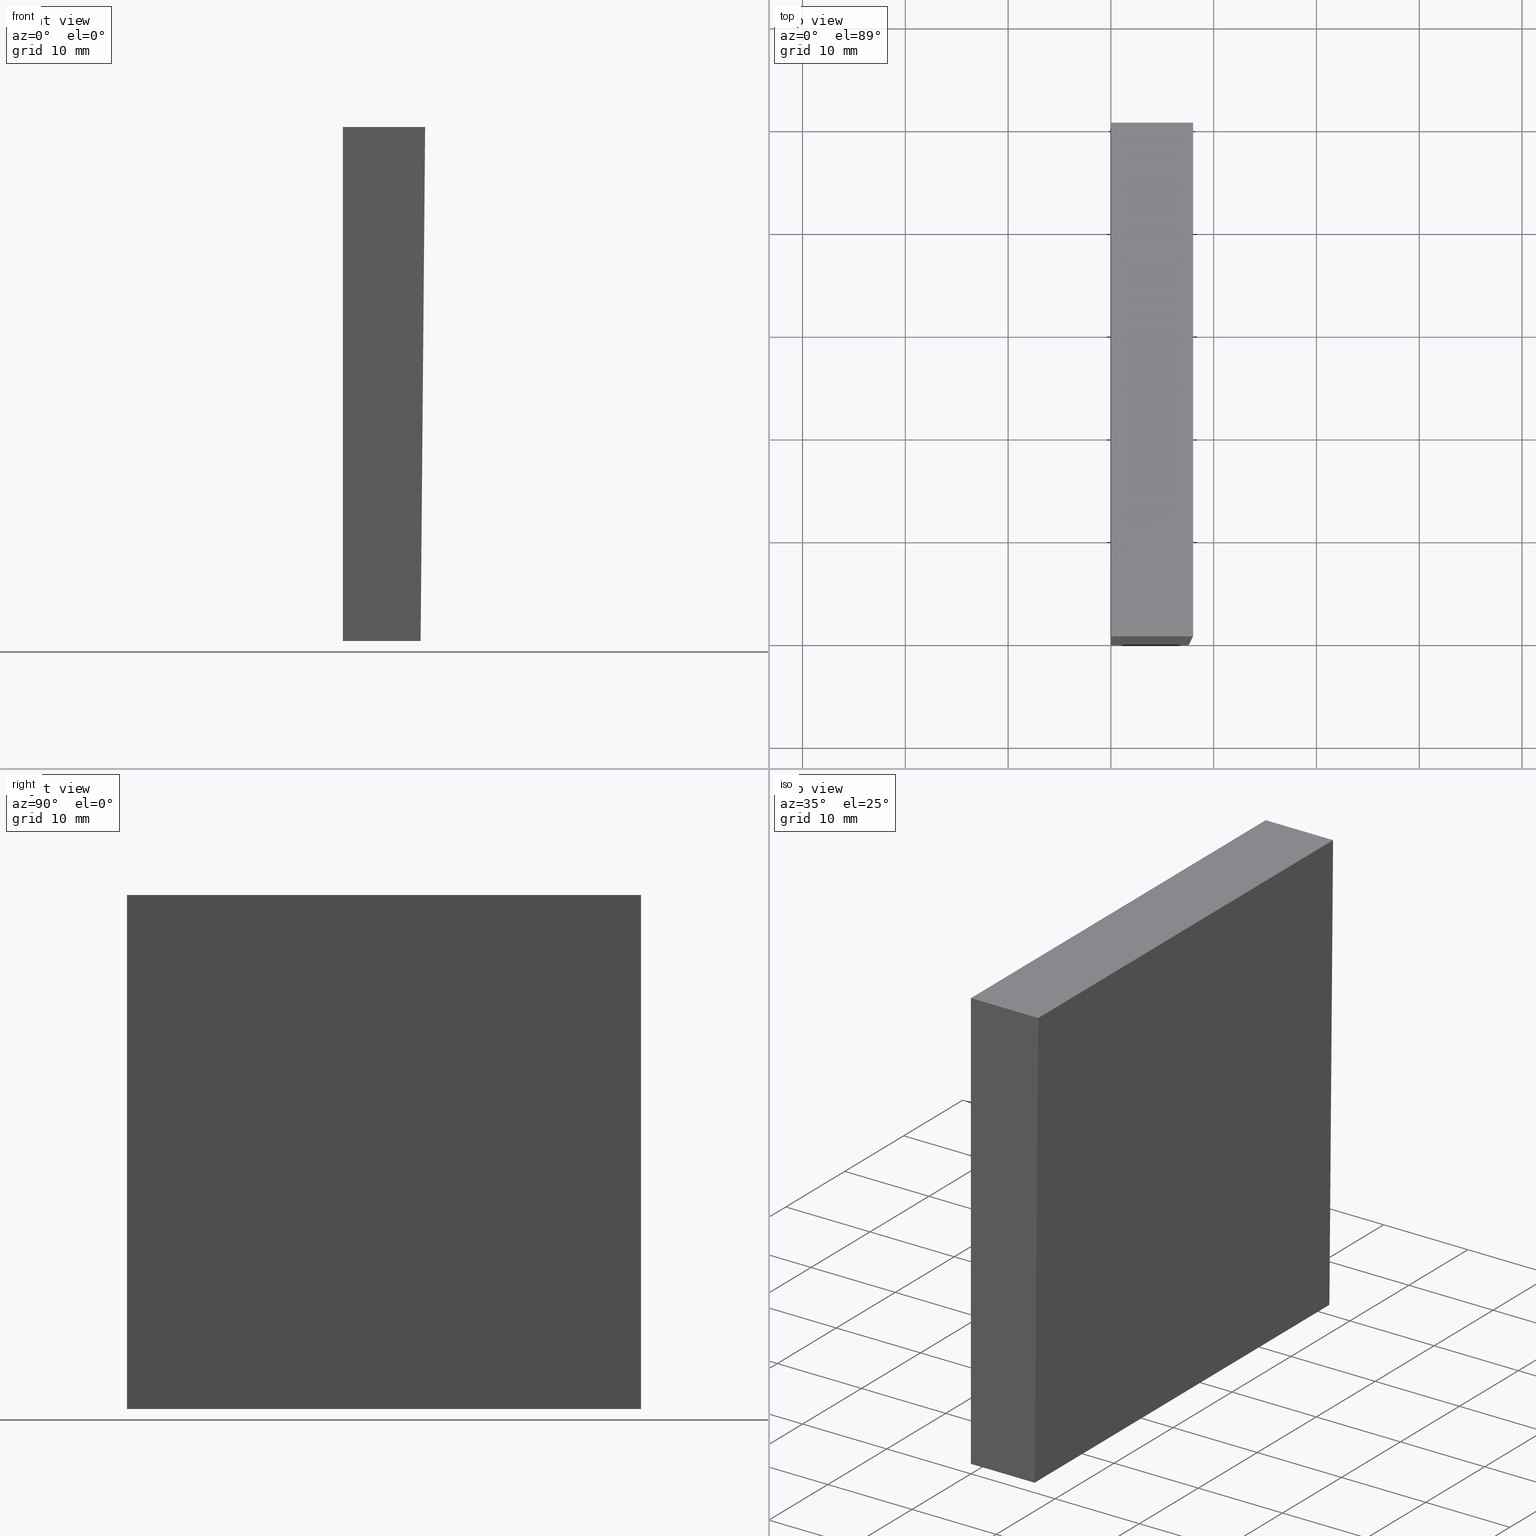
[diagram: canonical four-view strip — front | top / right | iso, engineering-drawing reading convention]
A machine part, canonical four-view strip (front | top / right | iso — engineering-drawing reading convention). The complete STEP part file that produces these views, byte-faithful:
ISO-10303-21;
HEADER;
FILE_DESCRIPTION (( 'STEP AP214' ),
    '1' );
FILE_NAME ('349515.STEP',
    '2019-08-13T03:42:50',
    ( 'user' ),
    ( '΢���й�' ),
    'SwSTEP 2.0',
    'SolidWorks 2016',
    '' );
FILE_SCHEMA (( 'AUTOMOTIVE_DESIGN' ));
ENDSEC;

DATA;
#1 = PRODUCT ( '349515', '349515', '', ( #151 ) ) ;
#2 = FACE_OUTER_BOUND ( 'NONE', #107, .T. ) ;
#3 = PRESENTATION_LAYER_ASSIGNMENT (  '', '', ( #194 ) ) ;
#4 = VERTEX_POINT ( 'NONE', #100 ) ;
#5 = ORIENTED_EDGE ( 'NONE', *, *, #96, .F. ) ;
#6 = DIRECTION ( 'NONE',  ( -0.0000000000000000000, -1.000000000000000000, -0.0000000000000000000 ) ) ;
#7 = VERTEX_POINT ( 'NONE', #145 ) ;
#8 = DIRECTION ( 'NONE',  ( 1.000000000000000000, 0.0000000000000000000, 0.0000000000000000000 ) ) ;
#9 = DIRECTION ( 'NONE',  ( 0.0000000000000000000, 0.0000000000000000000, 1.000000000000000000 ) ) ;
#10 = DIRECTION ( 'NONE',  ( -0.0000000000000000000, -1.000000000000000000, -0.0000000000000000000 ) ) ;
#11 = SURFACE_SIDE_STYLE ('',( #14 ) ) ;
#12 = MECHANICAL_DESIGN_GEOMETRIC_PRESENTATION_REPRESENTATION (  '', ( #194 ), #19 ) ;
#13 = VERTEX_POINT ( 'NONE', #35 ) ;
#14 = SURFACE_STYLE_FILL_AREA ( #102 ) ;
#15 = LINE ( 'NONE', #193, #80 ) ;
#16 = EDGE_CURVE ( 'NONE', #4, #27, #141, .T. ) ;
#17 = ORIENTED_EDGE ( 'NONE', *, *, #190, .F. ) ;
#18 = DIRECTION ( 'NONE',  ( 0.008726535498366981900, 0.0000000000000000000, 0.9999619230641713100 ) ) ;
#19 =( GEOMETRIC_REPRESENTATION_CONTEXT ( 3 ) GLOBAL_UNCERTAINTY_ASSIGNED_CONTEXT ( ( #174 ) ) GLOBAL_UNIT_ASSIGNED_CONTEXT ( ( #23, #130, #198 ) ) REPRESENTATION_CONTEXT ( 'NONE', 'WORKASPACE' ) );
#20 = DIRECTION ( 'NONE',  ( -1.000000000000000000, 0.0000000000000000000, -0.0000000000000000000 ) ) ;
#21 =( NAMED_UNIT ( * ) SI_UNIT ( $, .STERADIAN. ) SOLID_ANGLE_UNIT ( ) );
#22 = VERTEX_POINT ( 'NONE', #183 ) ;
#23 =( LENGTH_UNIT ( ) NAMED_UNIT ( * ) SI_UNIT ( .MILLI., .METRE. ) );
#24 = ORIENTED_EDGE ( 'NONE', *, *, #16, .T. ) ;
#25 = ADVANCED_BREP_SHAPE_REPRESENTATION ( '349515', ( #149, #49 ), #159 ) ;
#26 = ORIENTED_EDGE ( 'NONE', *, *, #140, .F. ) ;
#27 = VERTEX_POINT ( 'NONE', #85 ) ;
#28 = ORIENTED_EDGE ( 'NONE', *, *, #73, .F. ) ;
#29 = CARTESIAN_POINT ( 'NONE',  ( 7.563656610462413900, 50.00000000000000000, -25.00000000000000000 ) ) ;
#30 = PRESENTATION_STYLE_ASSIGNMENT (( #101 ) ) ;
#31 = CARTESIAN_POINT ( 'NONE',  ( 5.204170427930421300E-015, 50.00000000000000000, -25.00000000000000000 ) ) ;
#32 = CARTESIAN_POINT ( 'NONE',  ( 5.204170427930421300E-015, 0.0000000000000000000, -25.00000000000000000 ) ) ;
#33 = DIRECTION ( 'NONE',  ( 0.0000000000000000000, 0.0000000000000000000, -1.000000000000000000 ) ) ;
#34 = LINE ( 'NONE', #157, #189 ) ;
#35 = CARTESIAN_POINT ( 'NONE',  ( 8.000000000000005300, 50.00000000000000000, 25.00000000000000000 ) ) ;
#36 = DIRECTION ( 'NONE',  ( 0.0000000000000000000, 0.0000000000000000000, 1.000000000000000000 ) ) ;
#37 = CARTESIAN_POINT ( 'NONE',  ( 5.204170427930421300E-015, 0.0000000000000000000, -25.00000000000000000 ) ) ;
#38 = EDGE_CURVE ( 'NONE', #58, #154, #109, .T. ) ;
#39 = DIRECTION ( 'NONE',  ( 1.000000000000000000, 0.0000000000000000000, 0.0000000000000000000 ) ) ;
#40 = ADVANCED_FACE ( 'NONE', ( #2 ), #126, .F. ) ;
#41 = ORIENTED_EDGE ( 'NONE', *, *, #96, .T. ) ;
#42 = ADVANCED_FACE ( 'NONE', ( #137 ), #147, .F. ) ;
#43 = EDGE_LOOP ( 'NONE', ( #125, #5, #28, #162 ) ) ;
#44 = ORIENTED_EDGE ( 'NONE', *, *, #73, .T. ) ;
#45 = CARTESIAN_POINT ( 'NONE',  ( 7.563656610462413900, 0.0000000000000000000, -25.00000000000000000 ) ) ;
#46 = CARTESIAN_POINT ( 'NONE',  ( 5.204170427930421300E-015, 50.00000000000000000, -25.00000000000000000 ) ) ;
#47 = CARTESIAN_POINT ( 'NONE',  ( 8.000000000000005300, 50.00000000000000000, 25.00000000000000000 ) ) ;
#48 = EDGE_LOOP ( 'NONE', ( #161, #199, #71, #41 ) ) ;
#49 = AXIS2_PLACEMENT_3D ( 'NONE', #69, #9, #39 ) ;
#50 = DIRECTION ( 'NONE',  ( -0.0000000000000000000, -1.000000000000000000, -0.0000000000000000000 ) ) ;
#51 = FILL_AREA_STYLE_COLOUR ( '', #186 ) ;
#52 = DIRECTION ( 'NONE',  ( 0.0000000000000000000, 0.0000000000000000000, 1.000000000000000000 ) ) ;
#53 =( NAMED_UNIT ( * ) PLANE_ANGLE_UNIT ( ) SI_UNIT ( $, .RADIAN. ) );
#54 = APPLICATION_CONTEXT ( 'automotive_design' ) ;
#55 = PRESENTATION_LAYER_ASSIGNMENT (  '', '', ( #82 ) ) ;
#56 = EDGE_CURVE ( 'NONE', #7, #13, #105, .T. ) ;
#57 = ORIENTED_EDGE ( 'NONE', *, *, #38, .T. ) ;
#58 = VERTEX_POINT ( 'NONE', #124 ) ;
#59 = PRODUCT_DEFINITION ( 'δ֪', '', #74, #119 ) ;
#60 = CLOSED_SHELL ( 'NONE', ( #153, #75, #40, #72, #42, #93 ) ) ;
#61 = DIRECTION ( 'NONE',  ( -1.000000000000000000, -0.0000000000000000000, -0.0000000000000000000 ) ) ;
#62 = EDGE_LOOP ( 'NONE', ( #26, #68, #173, #112 ) ) ;
#63 = DIRECTION ( 'NONE',  ( 0.0000000000000000000, -1.000000000000000000, 0.0000000000000000000 ) ) ;
#64 = DIRECTION ( 'NONE',  ( -1.000000000000000000, -0.0000000000000000000, -0.0000000000000000000 ) ) ;
#65 = UNCERTAINTY_MEASURE_WITH_UNIT (LENGTH_MEASURE( 1.000000000000000100E-005 ), #150, 'distance_accuracy_value', 'NONE');
#66 = ORIENTED_EDGE ( 'NONE', *, *, #143, .T. ) ;
#67 = PLANE ( 'NONE',  #171 ) ;
#68 = ORIENTED_EDGE ( 'NONE', *, *, #176, .F. ) ;
#69 = CARTESIAN_POINT ( 'NONE',  ( 0.0000000000000000000, 0.0000000000000000000, 0.0000000000000000000 ) ) ;
#70 = EDGE_CURVE ( 'NONE', #154, #4, #86, .T. ) ;
#71 = ORIENTED_EDGE ( 'NONE', *, *, #132, .F. ) ;
#72 = ADVANCED_FACE ( 'NONE', ( #114 ), #175, .F. ) ;
#73 = EDGE_CURVE ( 'NONE', #13, #22, #117, .T. ) ;
#74 = PRODUCT_DEFINITION_FORMATION_WITH_SPECIFIED_SOURCE ( '�κ�', '', #1, .NOT_KNOWN. ) ;
#75 = ADVANCED_FACE ( 'NONE', ( #172 ), #158, .F. ) ;
#76 = VECTOR ( 'NONE', #8, 1000.000000000000000 ) ;
#77 = AXIS2_PLACEMENT_3D ( 'NONE', #88, #33, #20 ) ;
#78 = SURFACE_STYLE_FILL_AREA ( #89 ) ;
#79 = EDGE_LOOP ( 'NONE', ( #164, #127, #148, #57 ) ) ;
#80 = VECTOR ( 'NONE', #10, 1000.000000000000000 ) ;
#81 = DIRECTION ( 'NONE',  ( 1.000000000000000000, 0.0000000000000000000, 0.0000000000000000000 ) ) ;
#82 = STYLED_ITEM ( 'NONE', ( #30 ), #149 ) ;
#83 = CARTESIAN_POINT ( 'NONE',  ( 0.0000000000000000000, 0.0000000000000000000, 0.0000000000000000000 ) ) ;
#84 = CARTESIAN_POINT ( 'NONE',  ( 5.204170427930421300E-015, 50.00000000000000000, 25.00000000000000000 ) ) ;
#85 = CARTESIAN_POINT ( 'NONE',  ( 8.000000000000005300, 0.0000000000000000000, 25.00000000000000000 ) ) ;
#86 = LINE ( 'NONE', #32, #152 ) ;
#87 = PRODUCT_RELATED_PRODUCT_CATEGORY ( 'part', '', ( #1 ) ) ;
#88 = CARTESIAN_POINT ( 'NONE',  ( 5.204170427930421300E-015, 50.00000000000000000, 25.00000000000000000 ) ) ;
#89 = FILL_AREA_STYLE ('',( #51 ) ) ;
#90 = DIRECTION ( 'NONE',  ( -0.008726535498366983600, 0.0000000000000000000, -0.9999619230641713100 ) ) ;
#91 = PRODUCT_DEFINITION_SHAPE ( 'NONE', 'NONE',  #59 ) ;
#92 = ORIENTED_EDGE ( 'NONE', *, *, #136, .T. ) ;
#93 = ADVANCED_FACE ( 'NONE', ( #156 ), #98, .T. ) ;
#94 = ORIENTED_EDGE ( 'NONE', *, *, #132, .T. ) ;
#95 = AXIS2_PLACEMENT_3D ( 'NONE', #191, #81, #177 ) ;
#96 = EDGE_CURVE ( 'NONE', #22, #103, #146, .T. ) ;
#97 = CARTESIAN_POINT ( 'NONE',  ( 5.204170427930421300E-015, 50.00000000000000000, 25.00000000000000000 ) ) ;
#98 = PLANE ( 'NONE',  #188 ) ;
#99 = ORIENTED_EDGE ( 'NONE', *, *, #56, .F. ) ;
#100 = CARTESIAN_POINT ( 'NONE',  ( 5.204170427930421300E-015, 0.0000000000000000000, 25.00000000000000000 ) ) ;
#101 = SURFACE_STYLE_USAGE ( .BOTH. , #184 ) ;
#102 = FILL_AREA_STYLE ('',( #129 ) ) ;
#103 = VERTEX_POINT ( 'NONE', #45 ) ;
#104 = ORIENTED_EDGE ( 'NONE', *, *, #56, .T. ) ;
#105 = LINE ( 'NONE', #97, #76 ) ;
#106 = VECTOR ( 'NONE', #36, 1000.000000000000000 ) ;
#107 = EDGE_LOOP ( 'NONE', ( #24, #17, #99, #66 ) ) ;
#108 = CARTESIAN_POINT ( 'NONE',  ( 8.000000000000005300, 50.00000000000000000, 25.00000000000000000 ) ) ;
#109 = LINE ( 'NONE', #163, #169 ) ;
#110 = DIRECTION ( 'NONE',  ( 0.0000000000000000000, -0.0000000000000000000, -1.000000000000000000 ) ) ;
#111 = CARTESIAN_POINT ( 'NONE',  ( 5.204170427930421300E-015, 0.0000000000000000000, -25.00000000000000000 ) ) ;
#112 = ORIENTED_EDGE ( 'NONE', *, *, #70, .F. ) ;
#113 =( NAMED_UNIT ( * ) PLANE_ANGLE_UNIT ( ) SI_UNIT ( $, .RADIAN. ) );
#114 = FACE_OUTER_BOUND ( 'NONE', #43, .T. ) ;
#115 = SURFACE_STYLE_USAGE ( .BOTH. , #11 ) ;
#116 = SHAPE_DEFINITION_REPRESENTATION ( #91, #25 ) ;
#117 = LINE ( 'NONE', #47, #155 ) ;
#118 = AXIS2_PLACEMENT_3D ( 'NONE', #128, #144, #110 ) ;
#119 = PRODUCT_DEFINITION_CONTEXT ( 'detailed design', #54, 'design' ) ;
#120 = VECTOR ( 'NONE', #160, 1000.000000000000000 ) ;
#121 = VECTOR ( 'NONE', #64, 1000.000000000000000 ) ;
#122 = DIRECTION ( 'NONE',  ( 0.0000000000000000000, -0.0000000000000000000, -1.000000000000000000 ) ) ;
#123 = DIRECTION ( 'NONE',  ( -0.9999619230641714200, 0.0000000000000000000, 0.008726535498366983600 ) ) ;
#124 = CARTESIAN_POINT ( 'NONE',  ( 5.204170427930421300E-015, 50.00000000000000000, -25.00000000000000000 ) ) ;
#125 = ORIENTED_EDGE ( 'NONE', *, *, #176, .T. ) ;
#126 = PLANE ( 'NONE',  #77 ) ;
#127 = ORIENTED_EDGE ( 'NONE', *, *, #143, .F. ) ;
#128 = CARTESIAN_POINT ( 'NONE',  ( 0.0000000000000000000, 50.00000000000000000, 0.0000000000000000000 ) ) ;
#129 = FILL_AREA_STYLE_COLOUR ( '', #133 ) ;
#130 =( NAMED_UNIT ( * ) PLANE_ANGLE_UNIT ( ) SI_UNIT ( $, .RADIAN. ) );
#131 = EDGE_LOOP ( 'NONE', ( #94, #92, #104, #44 ) ) ;
#132 = EDGE_CURVE ( 'NONE', #22, #58, #34, .T. ) ;
#133 = COLOUR_RGB ( '',1.000000000000000000, 1.000000000000000000, 1.000000000000000000 ) ;
#134 = LINE ( 'NONE', #200, #182 ) ;
#135 =( GEOMETRIC_REPRESENTATION_CONTEXT ( 3 ) GLOBAL_UNCERTAINTY_ASSIGNED_CONTEXT ( ( #138 ) ) GLOBAL_UNIT_ASSIGNED_CONTEXT ( ( #197, #113, #21 ) ) REPRESENTATION_CONTEXT ( 'NONE', 'WORKASPACE' ) );
#136 = EDGE_CURVE ( 'NONE', #58, #7, #180, .T. ) ;
#137 = FACE_OUTER_BOUND ( 'NONE', #131, .T. ) ;
#138 = UNCERTAINTY_MEASURE_WITH_UNIT (LENGTH_MEASURE( 1.000000000000000100E-005 ), #197, 'distance_accuracy_value', 'NONE');
#139 = VECTOR ( 'NONE', #165, 1000.000000000000000 ) ;
#140 = EDGE_CURVE ( 'NONE', #103, #154, #192, .T. ) ;
#141 = LINE ( 'NONE', #195, #120 ) ;
#142 = DIRECTION ( 'NONE',  ( 0.0000000000000000000, 0.0000000000000000000, 1.000000000000000000 ) ) ;
#143 = EDGE_CURVE ( 'NONE', #7, #4, #202, .T. ) ;
#144 = DIRECTION ( 'NONE',  ( 0.0000000000000000000, -1.000000000000000000, 0.0000000000000000000 ) ) ;
#145 = CARTESIAN_POINT ( 'NONE',  ( 5.204170427930421300E-015, 50.00000000000000000, 25.00000000000000000 ) ) ;
#146 = LINE ( 'NONE', #29, #170 ) ;
#147 = PLANE ( 'NONE',  #118 ) ;
#148 = ORIENTED_EDGE ( 'NONE', *, *, #136, .F. ) ;
#149 = MANIFOLD_SOLID_BREP ( '͹̨-����1', #60 ) ;
#150 =( LENGTH_UNIT ( ) NAMED_UNIT ( * ) SI_UNIT ( .MILLI., .METRE. ) );
#151 = PRODUCT_CONTEXT ( 'NONE', #201, 'mechanical' ) ;
#152 = VECTOR ( 'NONE', #142, 1000.000000000000000 ) ;
#153 = ADVANCED_FACE ( 'NONE', ( #196 ), #67, .F. ) ;
#154 = VERTEX_POINT ( 'NONE', #37 ) ;
#155 = VECTOR ( 'NONE', #179, 1000.000000000000200 ) ;
#156 = FACE_OUTER_BOUND ( 'NONE', #62, .T. ) ;
#157 = CARTESIAN_POINT ( 'NONE',  ( 5.204170427930421300E-015, 50.00000000000000000, -25.00000000000000000 ) ) ;
#158 = PLANE ( 'NONE',  #95 ) ;
#159 =( GEOMETRIC_REPRESENTATION_CONTEXT ( 3 ) GLOBAL_UNCERTAINTY_ASSIGNED_CONTEXT ( ( #65 ) ) GLOBAL_UNIT_ASSIGNED_CONTEXT ( ( #150, #53, #167 ) ) REPRESENTATION_CONTEXT ( 'NONE', 'WORKASPACE' ) );
#160 = DIRECTION ( 'NONE',  ( 1.000000000000000000, 0.0000000000000000000, 0.0000000000000000000 ) ) ;
#161 = ORIENTED_EDGE ( 'NONE', *, *, #140, .T. ) ;
#162 = ORIENTED_EDGE ( 'NONE', *, *, #190, .T. ) ;
#163 = CARTESIAN_POINT ( 'NONE',  ( 5.204170427930421300E-015, 50.00000000000000000, -25.00000000000000000 ) ) ;
#164 = ORIENTED_EDGE ( 'NONE', *, *, #70, .T. ) ;
#165 = DIRECTION ( 'NONE',  ( -0.0000000000000000000, -1.000000000000000000, -0.0000000000000000000 ) ) ;
#166 = DIRECTION ( 'NONE',  ( 1.000000000000000000, 0.0000000000000000000, -0.0000000000000000000 ) ) ;
#167 =( NAMED_UNIT ( * ) SI_UNIT ( $, .STERADIAN. ) SOLID_ANGLE_UNIT ( ) );
#168 = APPLICATION_PROTOCOL_DEFINITION ( 'draft international standard', 'automotive_design', 1998, #54 ) ;
#169 = VECTOR ( 'NONE', #50, 1000.000000000000000 ) ;
#170 = VECTOR ( 'NONE', #6, 1000.000000000000000 ) ;
#171 = AXIS2_PLACEMENT_3D ( 'NONE', #31, #52, #166 ) ;
#172 = FACE_OUTER_BOUND ( 'NONE', #79, .T. ) ;
#173 = ORIENTED_EDGE ( 'NONE', *, *, #16, .F. ) ;
#174 = UNCERTAINTY_MEASURE_WITH_UNIT (LENGTH_MEASURE( 1.000000000000000100E-005 ), #23, 'distance_accuracy_value', 'NONE');
#175 = PLANE ( 'NONE',  #178 ) ;
#176 = EDGE_CURVE ( 'NONE', #27, #103, #134, .T. ) ;
#177 = DIRECTION ( 'NONE',  ( 0.0000000000000000000, 0.0000000000000000000, -1.000000000000000000 ) ) ;
#178 = AXIS2_PLACEMENT_3D ( 'NONE', #108, #123, #18 ) ;
#179 = DIRECTION ( 'NONE',  ( -0.008726535498366983600, 0.0000000000000000000, -0.9999619230641713100 ) ) ;
#180 = LINE ( 'NONE', #46, #106 ) ;
#181 = PRESENTATION_STYLE_ASSIGNMENT (( #115 ) ) ;
#182 = VECTOR ( 'NONE', #90, 1000.000000000000200 ) ;
#183 = CARTESIAN_POINT ( 'NONE',  ( 7.563656610462413900, 50.00000000000000000, -25.00000000000000000 ) ) ;
#184 = SURFACE_SIDE_STYLE ('',( #78 ) ) ;
#185 = APPLICATION_PROTOCOL_DEFINITION ( 'draft international standard', 'automotive_design', 1998, #201 ) ;
#186 = COLOUR_RGB ( '',1.000000000000000000, 1.000000000000000000, 1.000000000000000000 ) ;
#187 = MECHANICAL_DESIGN_GEOMETRIC_PRESENTATION_REPRESENTATION (  '', ( #82 ), #135 ) ;
#188 = AXIS2_PLACEMENT_3D ( 'NONE', #83, #63, #122 ) ;
#189 = VECTOR ( 'NONE', #61, 1000.000000000000000 ) ;
#190 = EDGE_CURVE ( 'NONE', #13, #27, #15, .T. ) ;
#191 = CARTESIAN_POINT ( 'NONE',  ( 5.204170427930421300E-015, 50.00000000000000000, -25.00000000000000000 ) ) ;
#192 = LINE ( 'NONE', #111, #121 ) ;
#193 = CARTESIAN_POINT ( 'NONE',  ( 8.000000000000005300, 50.00000000000000000, 25.00000000000000000 ) ) ;
#194 = STYLED_ITEM ( 'NONE', ( #181 ), #25 ) ;
#195 = CARTESIAN_POINT ( 'NONE',  ( 5.204170427930421300E-015, 0.0000000000000000000, 25.00000000000000000 ) ) ;
#196 = FACE_OUTER_BOUND ( 'NONE', #48, .T. ) ;
#197 =( LENGTH_UNIT ( ) NAMED_UNIT ( * ) SI_UNIT ( .MILLI., .METRE. ) );
#198 =( NAMED_UNIT ( * ) SI_UNIT ( $, .STERADIAN. ) SOLID_ANGLE_UNIT ( ) );
#199 = ORIENTED_EDGE ( 'NONE', *, *, #38, .F. ) ;
#200 = CARTESIAN_POINT ( 'NONE',  ( 8.000000000000005300, 0.0000000000000000000, 25.00000000000000000 ) ) ;
#201 = APPLICATION_CONTEXT ( 'automotive_design' ) ;
#202 = LINE ( 'NONE', #84, #139 ) ;
ENDSEC;
END-ISO-10303-21;
